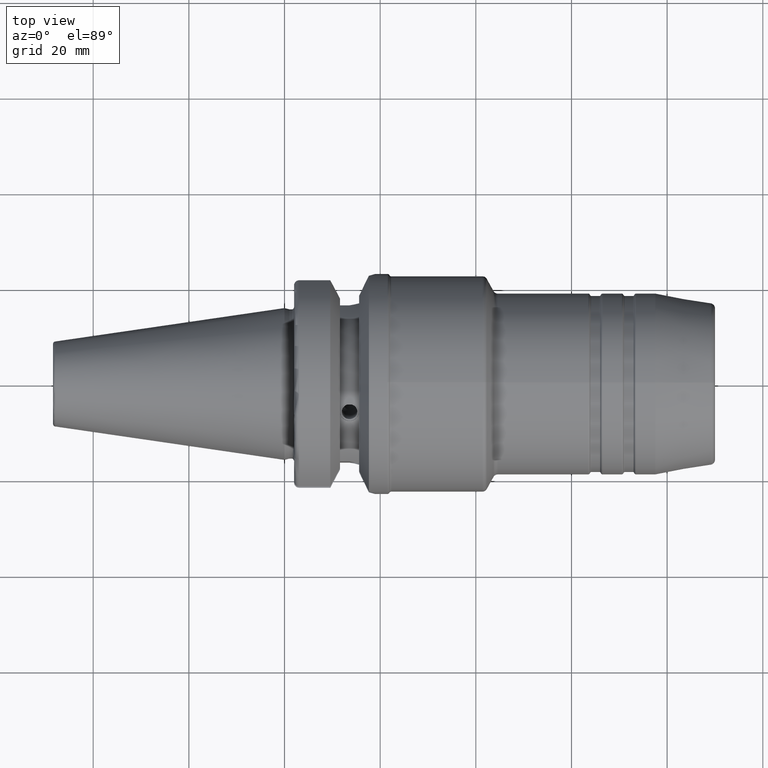
[diagram: clean part render]
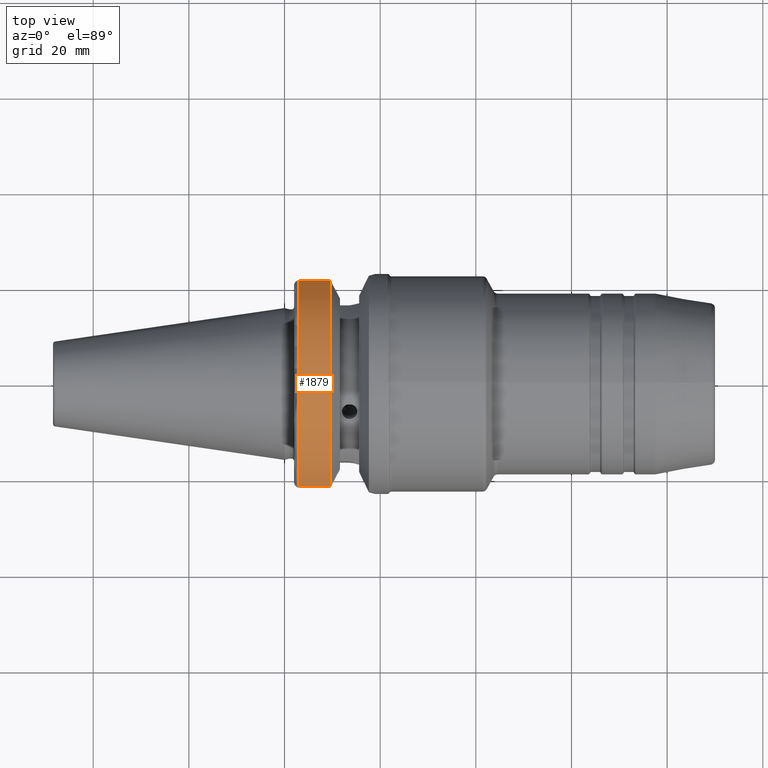
[diagram: same view with one face highlighted and labeled with its STEP entity id]
A machine part, top view. The second image highlights one B-rep face of the part: STEP entity #1879.
In plain terms, the highlighted cylindrical surface (partial cylindrical patch) has radius 23 mm, axis along (1, 0, 0).
Its self-contained STEP definition (entity closure, byte-faithful):
#199=FACE_OUTER_BOUND('',#306,.T.);
#306=EDGE_LOOP('',(#1726,#1727,#1728,#1729));
#391=LINE('',#3510,#466);
#407=LINE('',#3630,#482);
#466=VECTOR('',#2653,10.);
#482=VECTOR('',#2719,10.);
#586=CIRCLE('',#2052,23.);
#655=CIRCLE('',#2180,23.);
#758=VERTEX_POINT('',#3245);
#759=VERTEX_POINT('',#3256);
#816=VERTEX_POINT('',#3506);
#836=VERTEX_POINT('',#3625);
#1002=EDGE_CURVE('',#759,#758,#586,.T.);
#1079=EDGE_CURVE('',#758,#816,#391,.T.);
#1117=EDGE_CURVE('',#836,#759,#407,.T.);
#1154=EDGE_CURVE('',#836,#816,#655,.T.);
#1726=ORIENTED_EDGE('',*,*,#1079,.T.);
#1727=ORIENTED_EDGE('',*,*,#1154,.F.);
#1728=ORIENTED_EDGE('',*,*,#1117,.T.);
#1729=ORIENTED_EDGE('',*,*,#1002,.T.);
#1786=CYLINDRICAL_SURFACE('',#2179,23.);
#1879=ADVANCED_FACE('',(#199),#1786,.T.);
#2052=AXIS2_PLACEMENT_3D('',#3257,#2510,#2511);
#2179=AXIS2_PLACEMENT_3D('',#3705,#2814,#2815);
#2180=AXIS2_PLACEMENT_3D('',#3706,#2816,#2817);
#2510=DIRECTION('center_axis',(1.,1.62798202122572E-21,0.));
#2511=DIRECTION('ref_axis',(0.,0.,-1.));
#2653=DIRECTION('',(1.,1.62798202122572E-21,0.));
#2719=DIRECTION('',(-1.,-1.62798202122572E-21,0.));
#2814=DIRECTION('center_axis',(1.,1.62798202122572E-21,0.));
#2815=DIRECTION('ref_axis',(0.,1.,0.));
#2816=DIRECTION('center_axis',(1.,1.62798202122572E-21,0.));
#2817=DIRECTION('ref_axis',(0.,0.,-1.));
#3245=CARTESIAN_POINT('',(2.99999999999999,-21.5452430944745,8.05));
#3256=CARTESIAN_POINT('',(2.99999999999999,21.5452430944745,8.05));
#3257=CARTESIAN_POINT('Origin',(2.99999999999999,2.08174045357391E-15,0.));
#3506=CARTESIAN_POINT('',(9.57005904049381,-21.5452430944744,8.05));
#3510=CARTESIAN_POINT('',(6.2850295202469,-21.5452430944745,8.05));
#3625=CARTESIAN_POINT('',(9.57005904049381,21.5452430944744,8.05));
#3630=CARTESIAN_POINT('',(6.2850295202469,21.5452430944745,8.05));
#3705=CARTESIAN_POINT('Origin',(6.2850295202469,2.08174580154291E-15,0.));
#3706=CARTESIAN_POINT('Origin',(9.57005904049381,2.08175114951191E-15,0.));